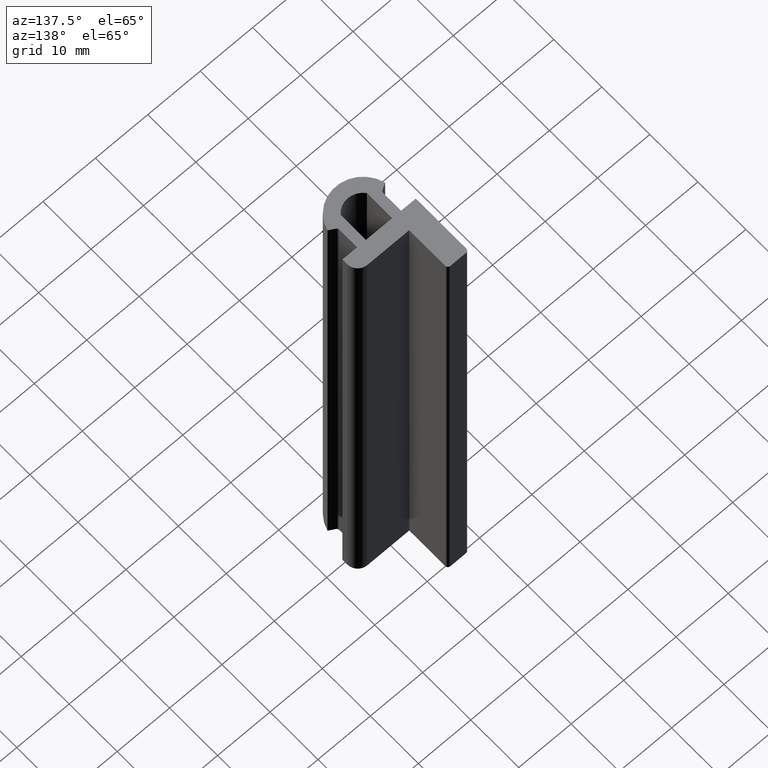
[diagram: clean part render]
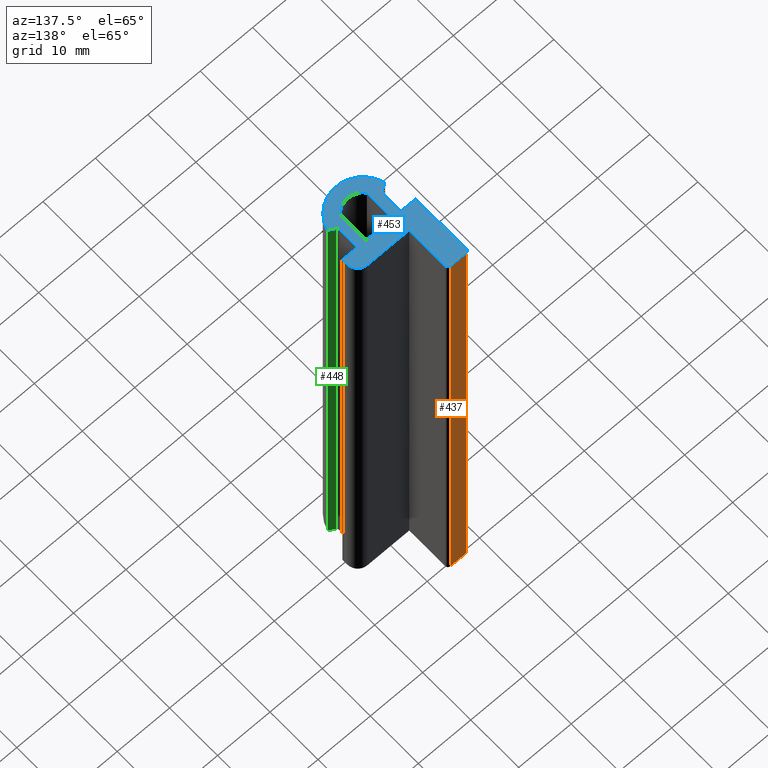
[diagram: same view with three faces highlighted in distinct colors, each labeled with its STEP entity id]
A machine part, auxiliary view with three faces highlighted in distinct colors.
Their STEP definitions:

[orange] entity #437 — the highlighted planar face has unit normal (0, 1, 0).
#20=PLANE('',#472);
#39=FACE_OUTER_BOUND('',#63,.T.);
#63=EDGE_LOOP('',(#339,#340,#341,#342));
#91=LINE('',#654,#140);
#93=LINE('',#660,#142);
#105=LINE('',#690,#154);
#106=LINE('',#691,#155);
#140=VECTOR('',#525,100.);
#142=VECTOR('',#531,3.);
#154=VECTOR('',#553,3.);
#155=VECTOR('',#554,100.);
#206=VERTEX_POINT('',#651);
#207=VERTEX_POINT('',#653);
#209=VERTEX_POINT('',#659);
#222=VERTEX_POINT('',#689);
#250=EDGE_CURVE('',#206,#207,#91,.T.);
#253=EDGE_CURVE('',#207,#209,#93,.T.);
#269=EDGE_CURVE('',#222,#206,#105,.T.);
#270=EDGE_CURVE('',#209,#222,#106,.T.);
#339=ORIENTED_EDGE('',*,*,#250,.F.);
#340=ORIENTED_EDGE('',*,*,#269,.F.);
#341=ORIENTED_EDGE('',*,*,#270,.F.);
#342=ORIENTED_EDGE('',*,*,#253,.F.);
#437=ADVANCED_FACE('',(#39),#20,.T.);
#472=AXIS2_PLACEMENT_3D('',#688,#551,#552);
#525=DIRECTION('',(0.,0.,-1.));
#531=DIRECTION('',(1.,0.,0.));
#551=DIRECTION('center_axis',(0.,1.,0.));
#552=DIRECTION('ref_axis',(-1.,0.,0.));
#553=DIRECTION('',(-1.,0.,0.));
#554=DIRECTION('',(0.,0.,1.));
#651=CARTESIAN_POINT('',(-6.5,11.,100.));
#653=CARTESIAN_POINT('',(-6.5,11.,0.));
#654=CARTESIAN_POINT('',(-6.5,11.,0.));
#659=CARTESIAN_POINT('',(-3.5,11.,0.));
#660=CARTESIAN_POINT('',(-7.,11.,0.));
#688=CARTESIAN_POINT('Origin',(-3.,11.,0.));
#689=CARTESIAN_POINT('',(-3.5,11.,100.));
#690=CARTESIAN_POINT('',(-7.,11.,100.));
#691=CARTESIAN_POINT('',(-3.5,11.,0.));

[blue] entity #453 — the highlighted planar face has unit normal (0, 0, 1).
#16=FACE_BOUND('',#80,.T.);
#32=PLANE('',#492);
#55=FACE_OUTER_BOUND('',#79,.T.);
#79=EDGE_LOOP('',(#403,#404,#405,#406,#407,#408,#409,#410,#411,#412,#413,
#414,#415,#416,#417,#418,#419));
#80=EDGE_LOOP('',(#420,#421,#422,#423));
#85=LINE('',#633,#134);
#90=LINE('',#648,#139);
#105=LINE('',#690,#154);
#110=LINE('',#704,#159);
#113=LINE('',#710,#162);
#116=LINE('',#715,#165);
#118=LINE('',#721,#167);
#119=LINE('',#724,#168);
#121=LINE('',#727,#170);
#122=LINE('',#729,#171);
#123=LINE('',#732,#172);
#125=LINE('',#738,#174);
#127=LINE('',#742,#176);
#129=LINE('',#745,#178);
#134=VECTOR('',#507,1.21243556529822);
#139=VECTOR('',#520,3.71132486540519);
#154=VECTOR('',#553,3.);
#159=VECTOR('',#568,1.);
#162=VECTOR('',#573,5.);
#165=VECTOR('',#578,5.28777142304358);
#167=VECTOR('',#586,5.28777142304358);
#168=VECTOR('',#589,7.5);
#170=VECTOR('',#593,8.);
#171=VECTOR('',#596,2.8);
#172=VECTOR('',#599,1.21243556529821);
#174=VECTOR('',#607,3.71132486540519);
#176=VECTOR('',#611,2.8);
#178=VECTOR('',#615,10.5);
#180=CIRCLE('',#458,0.5);
#182=CIRCLE('',#462,0.5);
#183=CIRCLE('',#465,0.5);
#189=CIRCLE('',#474,0.5);
#190=CIRCLE('',#476,2.);
#191=CIRCLE('',#481,3.18401094873187);
#192=CIRCLE('',#488,5.68401094873188);
#195=VERTEX_POINT('',#623);
#196=VERTEX_POINT('',#625);
#198=VERTEX_POINT('',#631);
#201=VERTEX_POINT('',#638);
#202=VERTEX_POINT('',#640);
#204=VERTEX_POINT('',#646);
#205=VERTEX_POINT('',#650);
#206=VERTEX_POINT('',#651);
#222=VERTEX_POINT('',#689);
#223=VERTEX_POINT('',#693);
#224=VERTEX_POINT('',#697);
#225=VERTEX_POINT('',#698);
#226=VERTEX_POINT('',#703);
#227=VERTEX_POINT('',#707);
#228=VERTEX_POINT('',#709);
#229=VERTEX_POINT('',#713);
#230=VERTEX_POINT('',#717);
#231=VERTEX_POINT('',#723);
#232=VERTEX_POINT('',#731);
#233=VERTEX_POINT('',#737);
#234=VERTEX_POINT('',#741);
#237=EDGE_CURVE('',#195,#196,#180,.T.);
#241=EDGE_CURVE('',#195,#198,#85,.T.);
#244=EDGE_CURVE('',#201,#202,#182,.T.);
#248=EDGE_CURVE('',#201,#204,#90,.T.);
#249=EDGE_CURVE('',#205,#206,#183,.T.);
#269=EDGE_CURVE('',#222,#206,#105,.T.);
#271=EDGE_CURVE('',#222,#223,#189,.T.);
#273=EDGE_CURVE('',#224,#225,#190,.T.);
#276=EDGE_CURVE('',#226,#225,#110,.T.);
#279=EDGE_CURVE('',#228,#227,#113,.T.);
#282=EDGE_CURVE('',#227,#229,#116,.T.);
#284=EDGE_CURVE('',#229,#230,#191,.T.);
#285=EDGE_CURVE('',#230,#228,#118,.T.);
#286=EDGE_CURVE('',#231,#223,#119,.T.);
#288=EDGE_CURVE('',#224,#231,#121,.T.);
#289=EDGE_CURVE('',#204,#226,#122,.T.);
#290=EDGE_CURVE('',#232,#202,#123,.T.);
#292=EDGE_CURVE('',#198,#232,#192,.T.);
#293=EDGE_CURVE('',#233,#196,#125,.T.);
#295=EDGE_CURVE('',#234,#233,#127,.T.);
#297=EDGE_CURVE('',#205,#234,#129,.T.);
#403=ORIENTED_EDGE('',*,*,#249,.F.);
#404=ORIENTED_EDGE('',*,*,#297,.T.);
#405=ORIENTED_EDGE('',*,*,#295,.T.);
#406=ORIENTED_EDGE('',*,*,#293,.T.);
#407=ORIENTED_EDGE('',*,*,#237,.F.);
#408=ORIENTED_EDGE('',*,*,#241,.T.);
#409=ORIENTED_EDGE('',*,*,#292,.T.);
#410=ORIENTED_EDGE('',*,*,#290,.T.);
#411=ORIENTED_EDGE('',*,*,#244,.F.);
#412=ORIENTED_EDGE('',*,*,#248,.T.);
#413=ORIENTED_EDGE('',*,*,#289,.T.);
#414=ORIENTED_EDGE('',*,*,#276,.T.);
#415=ORIENTED_EDGE('',*,*,#273,.F.);
#416=ORIENTED_EDGE('',*,*,#288,.T.);
#417=ORIENTED_EDGE('',*,*,#286,.T.);
#418=ORIENTED_EDGE('',*,*,#271,.F.);
#419=ORIENTED_EDGE('',*,*,#269,.T.);
#420=ORIENTED_EDGE('',*,*,#279,.T.);
#421=ORIENTED_EDGE('',*,*,#282,.T.);
#422=ORIENTED_EDGE('',*,*,#284,.T.);
#423=ORIENTED_EDGE('',*,*,#285,.T.);
#453=ADVANCED_FACE('',(#55,#16),#32,.T.);
#458=AXIS2_PLACEMENT_3D('',#626,#500,#501);
#462=AXIS2_PLACEMENT_3D('',#641,#513,#514);
#465=AXIS2_PLACEMENT_3D('',#652,#523,#524);
#474=AXIS2_PLACEMENT_3D('',#694,#557,#558);
#476=AXIS2_PLACEMENT_3D('',#699,#562,#563);
#481=AXIS2_PLACEMENT_3D('',#719,#582,#583);
#488=AXIS2_PLACEMENT_3D('',#735,#603,#604);
#492=AXIS2_PLACEMENT_3D('',#746,#616,#617);
#500=DIRECTION('center_axis',(0.,0.,1.));
#501=DIRECTION('ref_axis',(0.866025403784439,-0.5,0.));
#507=DIRECTION('',(-0.866025403784439,-0.5,0.));
#513=DIRECTION('center_axis',(0.,0.,1.));
#514=DIRECTION('ref_axis',(-0.866025403784439,-0.5,0.));
#520=DIRECTION('',(0.,1.,0.));
#523=DIRECTION('center_axis',(0.,0.,-1.));
#524=DIRECTION('ref_axis',(-0.707106781186549,0.707106781186546,0.));
#553=DIRECTION('',(-1.,0.,0.));
#557=DIRECTION('center_axis',(0.,0.,-1.));
#558=DIRECTION('ref_axis',(0.707106781186546,0.707106781186549,0.));
#562=DIRECTION('center_axis',(0.,0.,-1.));
#563=DIRECTION('ref_axis',(0.707106781186548,0.707106781186547,0.));
#568=DIRECTION('',(0.,1.,0.));
#573=DIRECTION('',(1.,0.,0.));
#578=DIRECTION('',(-5.24901199296794E-17,-1.,0.));
#582=DIRECTION('center_axis',(0.,0.,-1.));
#583=DIRECTION('ref_axis',(0.785173179443902,0.619276253607349,0.));
#586=DIRECTION('',(0.,1.,0.));
#589=DIRECTION('',(0.,1.,0.));
#593=DIRECTION('',(-1.,0.,0.));
#596=DIRECTION('',(1.,0.,0.));
#599=DIRECTION('',(-0.866025403784438,0.5,0.));
#603=DIRECTION('center_axis',(0.,0.,1.));
#604=DIRECTION('ref_axis',(0.967626566804392,0.25238626589881,0.));
#607=DIRECTION('',(1.38777878078145E-16,-1.,0.));
#611=DIRECTION('',(1.,0.,0.));
#615=DIRECTION('',(0.,-1.,0.));
#616=DIRECTION('center_axis',(0.,0.,1.));
#617=DIRECTION('ref_axis',(1.,0.,0.));
#623=CARTESIAN_POINT('',(-4.45,-4.14433756729741,100.));
#625=CARTESIAN_POINT('',(-4.2,-3.71132486540519,100.));
#626=CARTESIAN_POINT('Origin',(-4.7,-3.71132486540519,100.));
#631=CARTESIAN_POINT('',(-5.5,-4.75055534994651,100.));
#633=CARTESIAN_POINT('',(-5.5,-4.75055534994651,100.));
#638=CARTESIAN_POINT('',(4.2,-3.71132486540519,100.));
#640=CARTESIAN_POINT('',(4.45,-4.14433756729741,100.));
#641=CARTESIAN_POINT('Origin',(4.7,-3.71132486540519,100.));
#646=CARTESIAN_POINT('',(4.2,0.,100.));
#648=CARTESIAN_POINT('',(4.2,0.,100.));
#650=CARTESIAN_POINT('',(-7.,10.5,100.));
#651=CARTESIAN_POINT('',(-6.5,11.,100.));
#652=CARTESIAN_POINT('Origin',(-6.5,10.5,100.));
#689=CARTESIAN_POINT('',(-3.5,11.,100.));
#690=CARTESIAN_POINT('',(-7.,11.,100.));
#693=CARTESIAN_POINT('',(-3.,10.5,100.));
#694=CARTESIAN_POINT('Origin',(-3.5,10.5,100.));
#697=CARTESIAN_POINT('',(5.,3.,100.));
#698=CARTESIAN_POINT('',(7.,1.,100.));
#699=CARTESIAN_POINT('Origin',(5.,1.,100.));
#703=CARTESIAN_POINT('',(7.,0.,100.));
#704=CARTESIAN_POINT('',(7.,3.,100.));
#707=CARTESIAN_POINT('',(2.5,0.,100.));
#709=CARTESIAN_POINT('',(-2.5,0.,100.));
#710=CARTESIAN_POINT('',(0.623232136448981,0.,100.));
#713=CARTESIAN_POINT('',(2.5,-5.28777142304358,100.));
#715=CARTESIAN_POINT('',(2.5,-2.0032111680989,100.));
#717=CARTESIAN_POINT('',(-2.5,-5.28777142304358,100.));
#719=CARTESIAN_POINT('Origin',(0.,-3.31598905126813,100.));
#721=CARTESIAN_POINT('',(-2.5,0.640674543422896,100.));
#723=CARTESIAN_POINT('',(-3.,3.,100.));
#724=CARTESIAN_POINT('',(-3.,11.,100.));
#727=CARTESIAN_POINT('',(-3.,3.,100.));
#729=CARTESIAN_POINT('',(7.,0.,100.));
#731=CARTESIAN_POINT('',(5.5,-4.75055534994651,100.));
#732=CARTESIAN_POINT('',(4.2,-4.,100.));
#735=CARTESIAN_POINT('Origin',(0.,-3.31598905126813,100.));
#737=CARTESIAN_POINT('',(-4.2,0.,100.));
#738=CARTESIAN_POINT('',(-4.2,-4.,100.));
#741=CARTESIAN_POINT('',(-7.,0.,100.));
#742=CARTESIAN_POINT('',(-4.2,0.,100.));
#745=CARTESIAN_POINT('',(-7.,0.,100.));
#746=CARTESIAN_POINT('Origin',(-1.25353572710204,1.28134908684579,100.));

[green] entity #448 — the highlighted planar face has unit normal (0.5, 0.866, 0).
#28=PLANE('',#486);
#50=FACE_OUTER_BOUND('',#74,.T.);
#74=EDGE_LOOP('',(#383,#384,#385,#386));
#87=LINE('',#642,#136);
#98=LINE('',#673,#147);
#123=LINE('',#732,#172);
#124=LINE('',#733,#173);
#136=VECTOR('',#515,100.);
#147=VECTOR('',#540,1.21243556529821);
#172=VECTOR('',#599,1.21243556529821);
#173=VECTOR('',#600,100.);
#199=VERTEX_POINT('',#635);
#202=VERTEX_POINT('',#640);
#215=VERTEX_POINT('',#672);
#232=VERTEX_POINT('',#731);
#245=EDGE_CURVE('',#202,#199,#87,.T.);
#260=EDGE_CURVE('',#199,#215,#98,.T.);
#290=EDGE_CURVE('',#232,#202,#123,.T.);
#291=EDGE_CURVE('',#215,#232,#124,.T.);
#383=ORIENTED_EDGE('',*,*,#245,.F.);
#384=ORIENTED_EDGE('',*,*,#290,.F.);
#385=ORIENTED_EDGE('',*,*,#291,.F.);
#386=ORIENTED_EDGE('',*,*,#260,.F.);
#448=ADVANCED_FACE('',(#50),#28,.T.);
#486=AXIS2_PLACEMENT_3D('',#730,#597,#598);
#515=DIRECTION('',(0.,0.,-1.));
#540=DIRECTION('',(0.866025403784438,-0.5,0.));
#597=DIRECTION('center_axis',(0.5,0.866025403784439,0.));
#598=DIRECTION('ref_axis',(-0.866025403784438,0.5,0.));
#599=DIRECTION('',(-0.866025403784438,0.5,0.));
#600=DIRECTION('',(0.,0.,1.));
#635=CARTESIAN_POINT('',(4.45,-4.14433756729741,0.));
#640=CARTESIAN_POINT('',(4.45,-4.14433756729741,100.));
#642=CARTESIAN_POINT('',(4.45,-4.14433756729741,0.));
#672=CARTESIAN_POINT('',(5.5,-4.75055534994651,0.));
#673=CARTESIAN_POINT('',(4.2,-4.,0.));
#730=CARTESIAN_POINT('Origin',(5.5,-4.75055534994651,0.));
#731=CARTESIAN_POINT('',(5.5,-4.75055534994651,100.));
#732=CARTESIAN_POINT('',(4.2,-4.,100.));
#733=CARTESIAN_POINT('',(5.5,-4.75055534994651,0.));